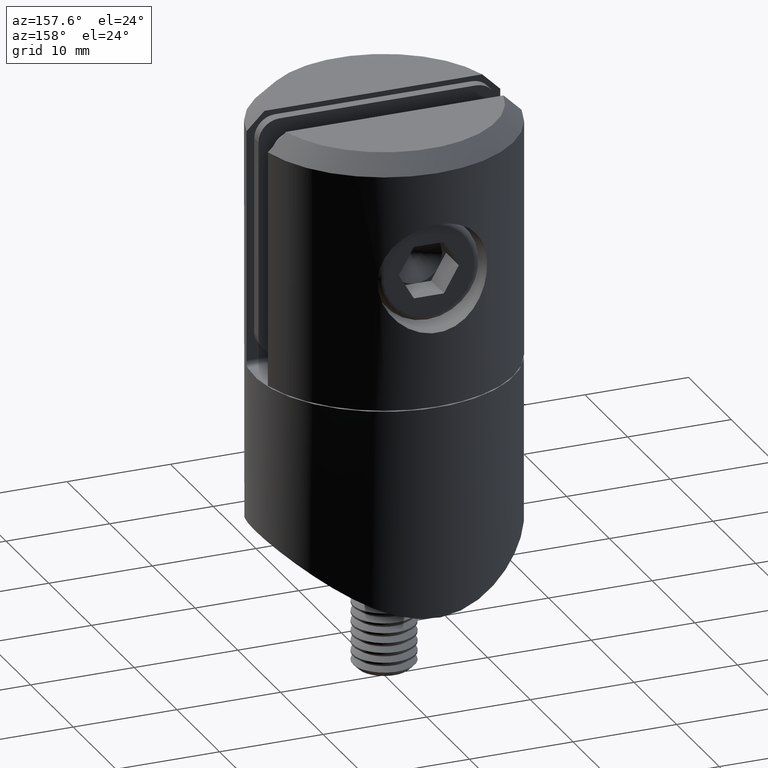
[diagram: clean part render]
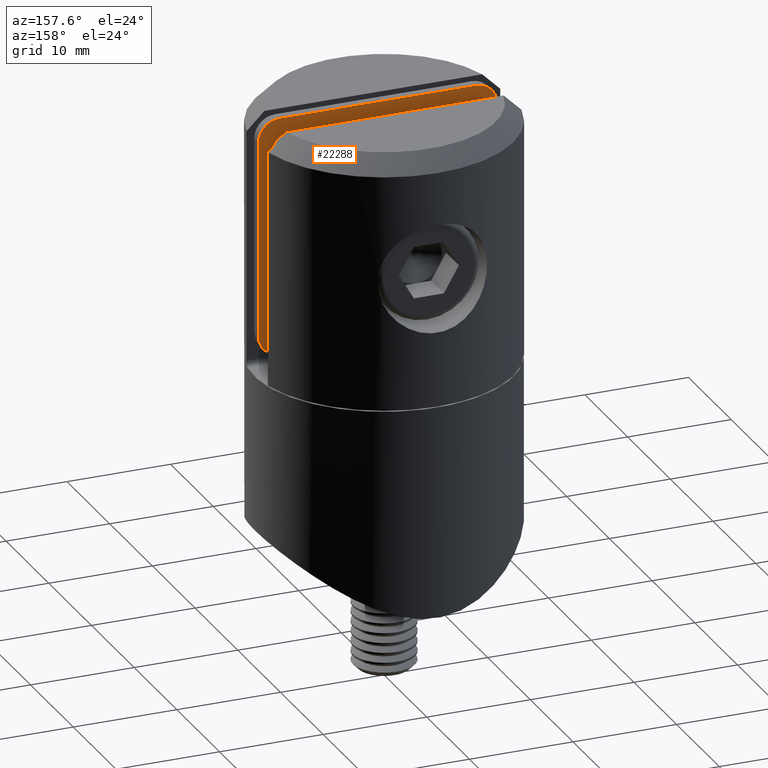
[diagram: same view with one face highlighted and labeled with its STEP entity id]
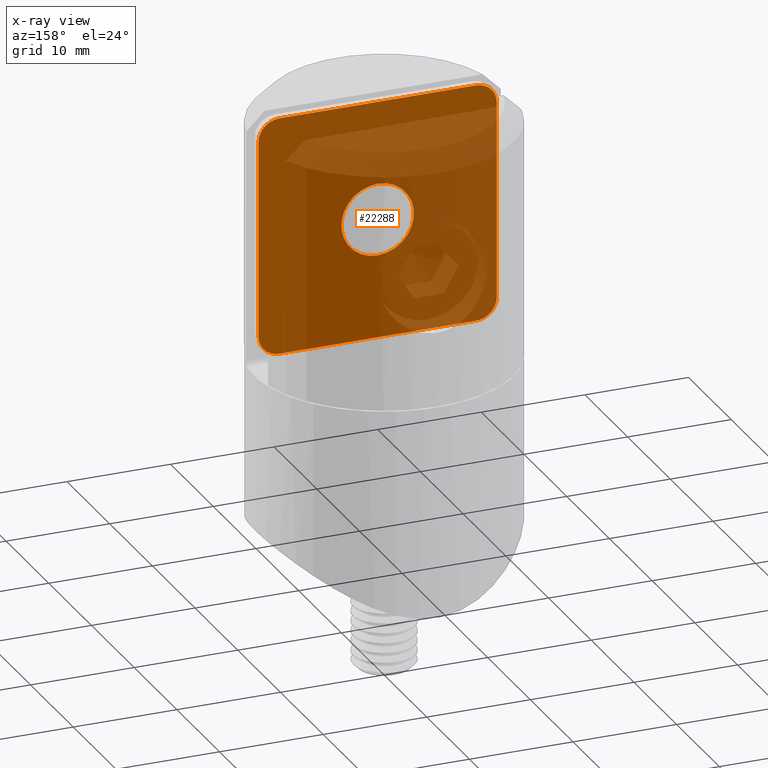
[diagram: x-ray of the same camera — body ghosted, the highlighted face saturated]
A machine part, auxiliary view. The second image highlights one B-rep face of the part: STEP entity #22288.
The next image is the same camera in x-ray: the body ghosted, the highlighted face saturated — about 78% of this face is hidden behind the body in this view.
In plain terms, the highlighted planar face has unit normal (0, 1, 0).
Its self-contained STEP definition (entity closure, byte-faithful):
#143 = VECTOR ( 'NONE', #4835, 1000.000000000000000 ) ;
#407 = LINE ( 'NONE', #8565, #143 ) ;
#877 = DIRECTION ( 'NONE',  ( 0.000000000000000000, 0.000000000000000000, -1.000000000000000000 ) ) ;
#925 = CARTESIAN_POINT ( 'NONE',  ( 0.000000000000000000, 0.000000000000000000, 0.000000000000000000 ) ) ;
#1120 = ORIENTED_EDGE ( 'NONE', *, *, #9258, .T. ) ;
#1230 = AXIS2_PLACEMENT_3D ( 'NONE', #16019, #12462, #17585 ) ;
#1414 = VECTOR ( 'NONE', #10886, 1000.000000000000000 ) ;
#1530 = EDGE_CURVE ( 'NONE', #20027, #11692, #11297, .T. ) ;
#1671 = CIRCLE ( 'NONE', #10424, 2.000000000000000000 ) ;
#1936 = CIRCLE ( 'NONE', #1230, 2.000000000000000000 ) ;
#1954 = CARTESIAN_POINT ( 'NONE',  ( 0.000000000000000000, 0.000000000000000000, 3.499999999999999556 ) ) ;
#2235 = CARTESIAN_POINT ( 'NONE',  ( -11.50000000000000000, 0.000000000000000000, 11.49999999999999645 ) ) ;
#2280 = DIRECTION ( 'NONE',  ( 0.000000000000000000, -1.000000000000000000, -0.000000000000000000 ) ) ;
#2607 = VECTOR ( 'NONE', #10302, 1000.000000000000000 ) ;
#2707 = EDGE_CURVE ( 'NONE', #5892, #11692, #3425, .T. ) ;
#3425 = LINE ( 'NONE', #11963, #2607 ) ;
#3625 = ORIENTED_EDGE ( 'NONE', *, *, #1530, .T. ) ;
#4464 = LINE ( 'NONE', #2235, #1414 ) ;
#4515 = EDGE_CURVE ( 'NONE', #16277, #18122, #19174, .T. ) ;
#4835 = DIRECTION ( 'NONE',  ( 1.000000000000000000, 0.000000000000000000, 7.542275982507857147E-17 ) ) ;
#4933 = CIRCLE ( 'NONE', #18778, 3.499999999999999556 ) ;
#5165 = VECTOR ( 'NONE', #10229, 1000.000000000000000 ) ;
#5541 = ORIENTED_EDGE ( 'NONE', *, *, #11998, .F. ) ;
#5621 = CARTESIAN_POINT ( 'NONE',  ( -9.500000000000000000, 0.000000000000000000, 11.49999999999999645 ) ) ;
#5892 = VERTEX_POINT ( 'NONE', #11006 ) ;
#6285 = AXIS2_PLACEMENT_3D ( 'NONE', #11316, #2280, #9340 ) ;
#7073 = EDGE_CURVE ( 'NONE', #5892, #21848, #1671, .T. ) ;
#8218 = LINE ( 'NONE', #17328, #5165 ) ;
#8565 = CARTESIAN_POINT ( 'NONE',  ( -11.50000000000000000, 0.000000000000000000, 11.49999999999999645 ) ) ;
#8757 = CARTESIAN_POINT ( 'NONE',  ( 0.000000000000000000, 0.000000000000000000, 0.000000000000000000 ) ) ;
#9053 = CARTESIAN_POINT ( 'NONE',  ( 9.499999999999998224, 0.000000000000000000, 11.49999999999999822 ) ) ;
#9121 = CARTESIAN_POINT ( 'NONE',  ( 9.499999999999996447, 0.000000000000000000, -9.500000000000000000 ) ) ;
#9258 = EDGE_CURVE ( 'NONE', #23087, #23087, #4933, .T. ) ;
#9340 = DIRECTION ( 'NONE',  ( 0.000000000000000000, 0.000000000000000000, -1.000000000000000000 ) ) ;
#9662 = FACE_BOUND ( 'NONE', #13650, .T. ) ;
#9752 = VERTEX_POINT ( 'NONE', #9053 ) ;
#9770 = CARTESIAN_POINT ( 'NONE',  ( -11.50000000000000355, 0.000000000000000000, -9.499999999999987566 ) ) ;
#9833 = DIRECTION ( 'NONE',  ( 0.000000000000000000, -1.000000000000000000, -0.000000000000000000 ) ) ;
#9967 = AXIS2_PLACEMENT_3D ( 'NONE', #8757, #12394, #16028 ) ;
#10229 = DIRECTION ( 'NONE',  ( -1.508455196501571429E-16, 0.000000000000000000, -1.000000000000000000 ) ) ;
#10302 = DIRECTION ( 'NONE',  ( -1.000000000000000000, -0.000000000000000000, 5.279593187755499510E-16 ) ) ;
#10424 = AXIS2_PLACEMENT_3D ( 'NONE', #9121, #21562, #10872 ) ;
#10491 = PLANE ( 'NONE',  #9967 ) ;
#10872 = DIRECTION ( 'NONE',  ( 0.000000000000000000, 0.000000000000000000, -1.000000000000000000 ) ) ;
#10886 = DIRECTION ( 'NONE',  ( 1.508455196501572415E-16, -0.000000000000000000, 1.000000000000000000 ) ) ;
#11006 = CARTESIAN_POINT ( 'NONE',  ( 9.499999999999994671, 0.000000000000000000, -11.50000000000000000 ) ) ;
#11297 = CIRCLE ( 'NONE', #6285, 2.000000000000000000 ) ;
#11316 = CARTESIAN_POINT ( 'NONE',  ( -9.500000000000003553, 0.000000000000000000, -9.499999999999987566 ) ) ;
#11692 = VERTEX_POINT ( 'NONE', #13926 ) ;
#11963 = CARTESIAN_POINT ( 'NONE',  ( -11.50000000000000355, 0.000000000000000000, -11.49999999999998934 ) ) ;
#11998 = EDGE_CURVE ( 'NONE', #16277, #9752, #407, .T. ) ;
#12394 = DIRECTION ( 'NONE',  ( 0.000000000000000000, -1.000000000000000000, 0.000000000000000000 ) ) ;
#12462 = DIRECTION ( 'NONE',  ( 0.000000000000000000, -1.000000000000000000, -0.000000000000000000 ) ) ;
#12920 = ORIENTED_EDGE ( 'NONE', *, *, #2707, .F. ) ;
#13223 = CARTESIAN_POINT ( 'NONE',  ( 11.49999999999999645, 0.000000000000000000, -9.500000000000000000 ) ) ;
#13229 = EDGE_LOOP ( 'NONE', ( #18836, #3625, #12920, #15061, #18301, #15824, #5541, #17918 ) ) ;
#13428 = DIRECTION ( 'NONE',  ( 0.000000000000000000, 1.000000000000000000, 0.000000000000000000 ) ) ;
#13650 = EDGE_LOOP ( 'NONE', ( #1120 ) ) ;
#13926 = CARTESIAN_POINT ( 'NONE',  ( -9.500000000000005329, 0.000000000000000000, -11.49999999999999112 ) ) ;
#14222 = CARTESIAN_POINT ( 'NONE',  ( 11.50000000000000000, 0.000000000000000000, 9.499999999999998224 ) ) ;
#14876 = AXIS2_PLACEMENT_3D ( 'NONE', #22249, #9833, #877 ) ;
#15061 = ORIENTED_EDGE ( 'NONE', *, *, #7073, .T. ) ;
#15732 = EDGE_CURVE ( 'NONE', #19525, #9752, #1936, .T. ) ;
#15824 = ORIENTED_EDGE ( 'NONE', *, *, #15732, .T. ) ;
#16013 = EDGE_CURVE ( 'NONE', #19525, #21848, #8218, .T. ) ;
#16019 = CARTESIAN_POINT ( 'NONE',  ( 9.500000000000000000, 0.000000000000000000, 9.499999999999998224 ) ) ;
#16028 = DIRECTION ( 'NONE',  ( 0.000000000000000000, 0.000000000000000000, -1.000000000000000000 ) ) ;
#16277 = VERTEX_POINT ( 'NONE', #5621 ) ;
#16897 = DIRECTION ( 'NONE',  ( 0.000000000000000000, 0.000000000000000000, 1.000000000000000000 ) ) ;
#17328 = CARTESIAN_POINT ( 'NONE',  ( 11.50000000000000000, 0.000000000000000000, 11.49999999999999822 ) ) ;
#17585 = DIRECTION ( 'NONE',  ( 0.000000000000000000, 0.000000000000000000, -1.000000000000000000 ) ) ;
#17918 = ORIENTED_EDGE ( 'NONE', *, *, #4515, .T. ) ;
#18122 = VERTEX_POINT ( 'NONE', #22653 ) ;
#18301 = ORIENTED_EDGE ( 'NONE', *, *, #16013, .F. ) ;
#18778 = AXIS2_PLACEMENT_3D ( 'NONE', #925, #13428, #16897 ) ;
#18836 = ORIENTED_EDGE ( 'NONE', *, *, #19880, .F. ) ;
#19131 = FACE_OUTER_BOUND ( 'NONE', #13229, .T. ) ;
#19174 = CIRCLE ( 'NONE', #14876, 2.000000000000000000 ) ;
#19525 = VERTEX_POINT ( 'NONE', #14222 ) ;
#19880 = EDGE_CURVE ( 'NONE', #20027, #18122, #4464, .T. ) ;
#20027 = VERTEX_POINT ( 'NONE', #9770 ) ;
#21562 = DIRECTION ( 'NONE',  ( 0.000000000000000000, -1.000000000000000000, -0.000000000000000000 ) ) ;
#21848 = VERTEX_POINT ( 'NONE', #13223 ) ;
#22249 = CARTESIAN_POINT ( 'NONE',  ( -9.500000000000000000, 0.000000000000000000, 9.499999999999996447 ) ) ;
#22288 = ADVANCED_FACE ( 'NONE', ( #19131, #9662 ), #10491, .T. ) ;
#22653 = CARTESIAN_POINT ( 'NONE',  ( -11.50000000000000000, 0.000000000000000000, 9.499999999999996447 ) ) ;
#23087 = VERTEX_POINT ( 'NONE', #1954 ) ;